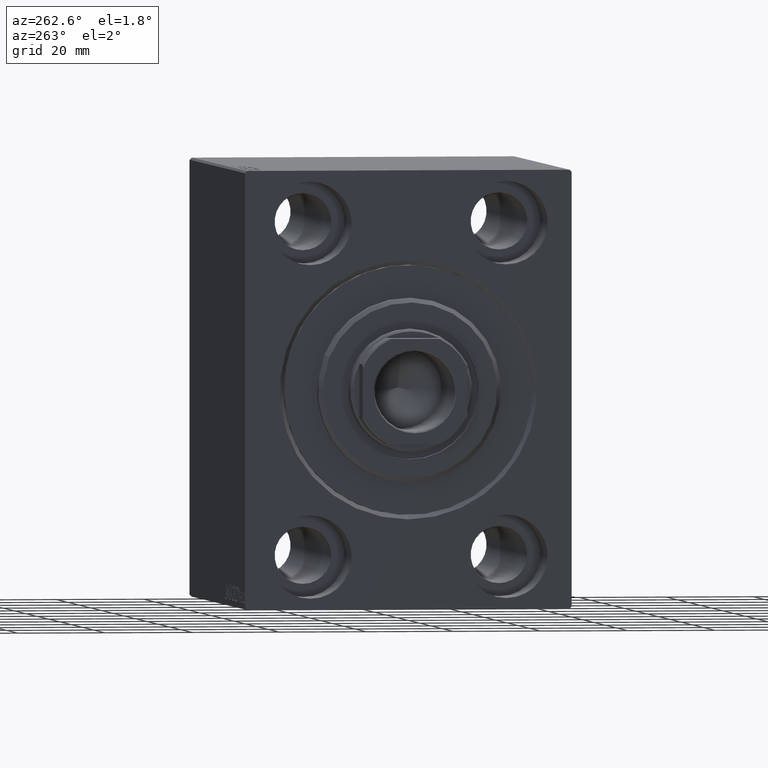
[diagram: clean part render]
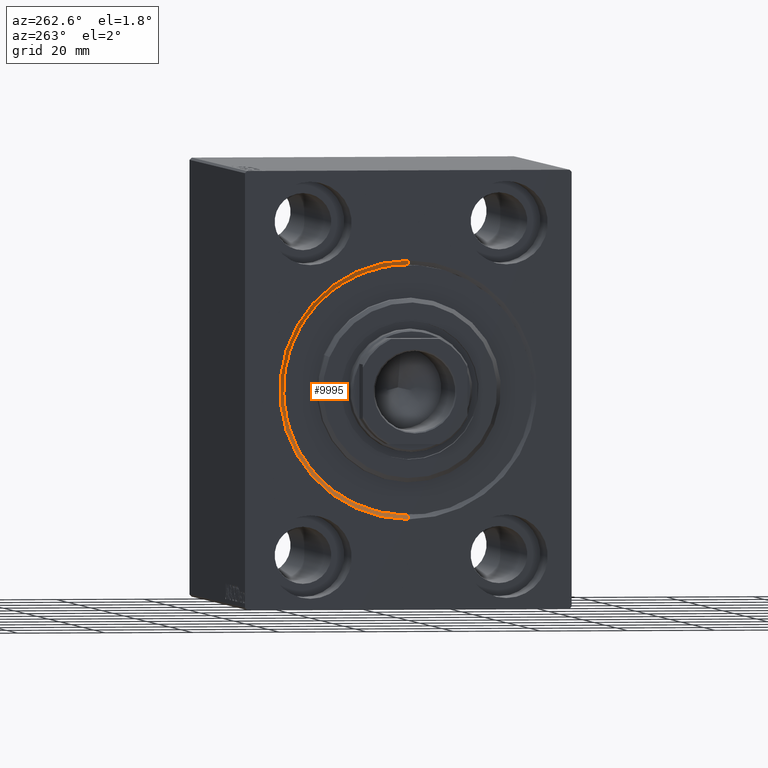
[diagram: same view with one face highlighted and labeled with its STEP entity id]
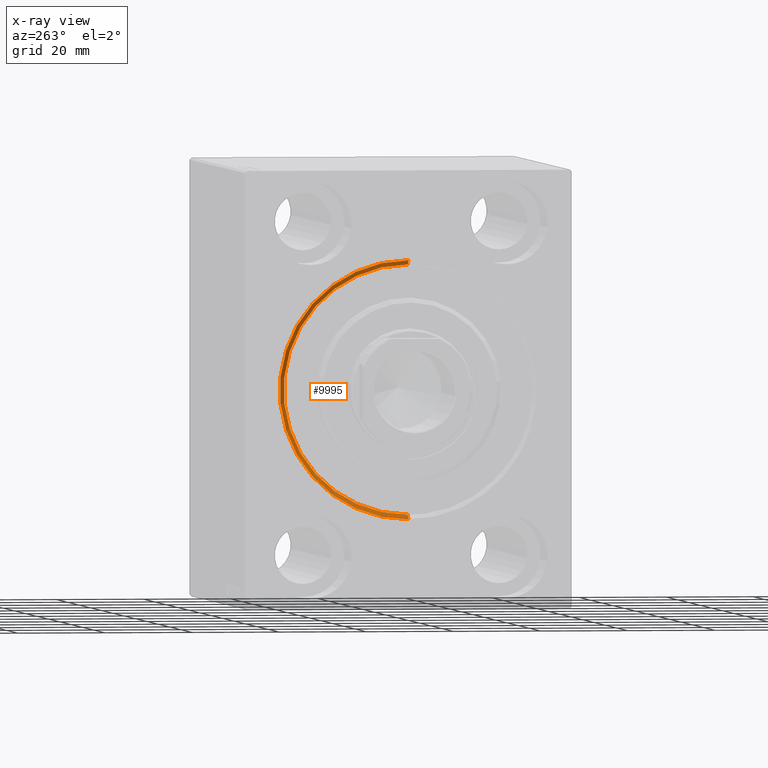
[diagram: x-ray of the same camera — body ghosted, the highlighted face saturated]
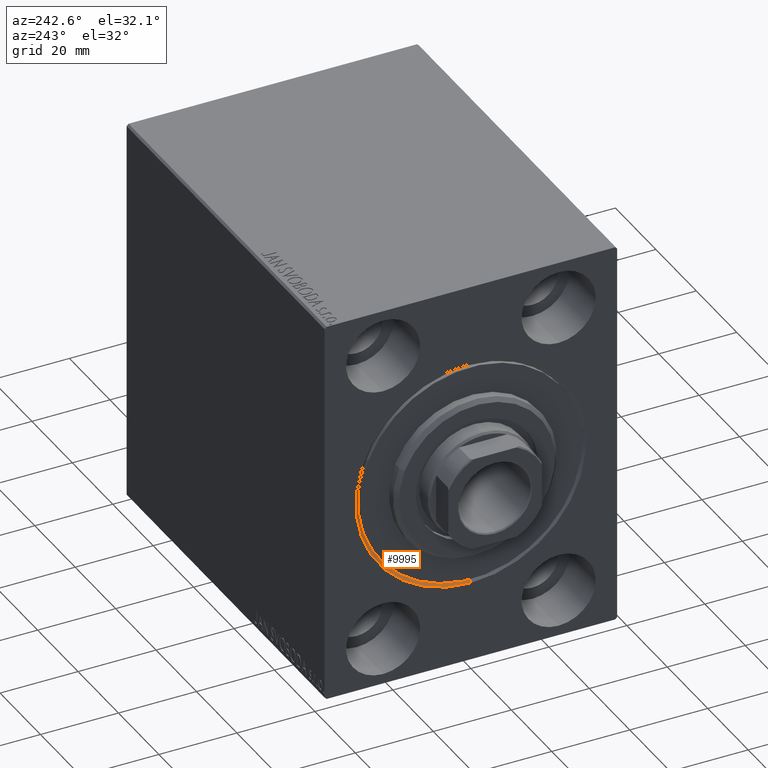
[diagram: same view with one face highlighted and labeled with its STEP entity id]
A machine part, auxiliary view. The second image highlights one B-rep face of the part: STEP entity #9995.
The next image is the same camera in x-ray: the body ghosted, the highlighted face saturated — about 0% of this face is hidden behind the body in this view.
A second angle (auxiliary view) of the same face is appended — the face is thin or edge-on in the first view.
In plain terms, the highlighted conical surface has half-angle 45 deg.
Its self-contained STEP definition (entity closure, byte-faithful):
#194 = DIRECTION ( 'NONE',  ( -1.000000000000000000, 0.000000000000000000, 0.000000000000000000 ) ) ;
#245 = CIRCLE ( 'NONE', #27745, 28.50000000000000000 ) ;
#275 = CIRCLE ( 'NONE', #25675, 29.50000000000001421 ) ;
#482 = DIRECTION ( 'NONE',  ( 0.000000000000000000, 0.000000000000000000, 1.000000000000000000 ) ) ;
#2424 = DIRECTION ( 'NONE',  ( 0.000000000000000000, 0.000000000000000000, -1.000000000000000000 ) ) ;
#2545 = ORIENTED_EDGE ( 'NONE', *, *, #22044, .F. ) ;
#3115 = ORIENTED_EDGE ( 'NONE', *, *, #35960, .F. ) ;
#5145 = DIRECTION ( 'NONE',  ( -0.7071067811865487940, 0.000000000000000000, 0.7071067811865463515 ) ) ;
#6978 = EDGE_LOOP ( 'NONE', ( #2545, #3115, #22248, #42951 ) ) ;
#7028 = CARTESIAN_POINT ( 'NONE',  ( 1.000000000000018208, 3.490243377569956456E-15, -28.50000000000000000 ) ) ;
#7641 = VERTEX_POINT ( 'NONE', #8334 ) ;
#7750 = CARTESIAN_POINT ( 'NONE',  ( 1.000000000000018208, 0.000000000000000000, 0.000000000000000000 ) ) ;
#8334 = CARTESIAN_POINT ( 'NONE',  ( 1.000000000000018208, 0.000000000000000000, 28.50000000000000000 ) ) ;
#9995 = ADVANCED_FACE ( 'NONE', ( #30963 ), #19957, .F. ) ;
#14089 = DIRECTION ( 'NONE',  ( 0.000000000000000000, 0.000000000000000000, -1.000000000000000000 ) ) ;
#15723 = VERTEX_POINT ( 'NONE', #18313 ) ;
#17422 = VECTOR ( 'NONE', #20918, 1000.000000000000000 ) ;
#17815 = CARTESIAN_POINT ( 'NONE',  ( 0.000000000000000000, 3.612708057484693970E-15, -29.50000000000001421 ) ) ;
#18313 = CARTESIAN_POINT ( 'NONE',  ( 0.000000000000000000, 0.000000000000000000, 29.50000000000001421 ) ) ;
#18837 = CARTESIAN_POINT ( 'NONE',  ( 1.000000000000018208, 0.000000000000000000, 28.50000000000000000 ) ) ;
#19206 = CARTESIAN_POINT ( 'NONE',  ( 0.000000000000000000, 0.000000000000000000, 0.000000000000000000 ) ) ;
#19218 = AXIS2_PLACEMENT_3D ( 'NONE', #7750, #40686, #482 ) ;
#19957 = CONICAL_SURFACE ( 'NONE', #19218, 28.50000000000000000, 0.7853981633974466137 ) ;
#20918 = DIRECTION ( 'NONE',  ( -0.7071067811865487940, 8.659560562354919300E-17, -0.7071067811865463515 ) ) ;
#22044 = EDGE_CURVE ( 'NONE', #35467, #22075, #30869, .T. ) ;
#22075 = VERTEX_POINT ( 'NONE', #17815 ) ;
#22248 = ORIENTED_EDGE ( 'NONE', *, *, #41454, .T. ) ;
#22952 = DIRECTION ( 'NONE',  ( 1.000000000000000000, 0.000000000000000000, 0.000000000000000000 ) ) ;
#24031 = CARTESIAN_POINT ( 'NONE',  ( 1.000000000000018208, 0.000000000000000000, 0.000000000000000000 ) ) ;
#25675 = AXIS2_PLACEMENT_3D ( 'NONE', #19206, #22952, #2424 ) ;
#26528 = CARTESIAN_POINT ( 'NONE',  ( 1.000000000000018208, 3.490243377569956456E-15, -28.50000000000000000 ) ) ;
#27745 = AXIS2_PLACEMENT_3D ( 'NONE', #24031, #194, #14089 ) ;
#30089 = VECTOR ( 'NONE', #5145, 1000.000000000000000 ) ;
#30869 = LINE ( 'NONE', #7028, #17422 ) ;
#30963 = FACE_OUTER_BOUND ( 'NONE', #6978, .T. ) ;
#35403 = LINE ( 'NONE', #18837, #30089 ) ;
#35467 = VERTEX_POINT ( 'NONE', #26528 ) ;
#35960 = EDGE_CURVE ( 'NONE', #7641, #35467, #245, .T. ) ;
#36679 = EDGE_CURVE ( 'NONE', #22075, #15723, #275, .T. ) ;
#40686 = DIRECTION ( 'NONE',  ( -1.000000000000000000, 0.000000000000000000, 0.000000000000000000 ) ) ;
#41454 = EDGE_CURVE ( 'NONE', #7641, #15723, #35403, .T. ) ;
#42951 = ORIENTED_EDGE ( 'NONE', *, *, #36679, .F. ) ;